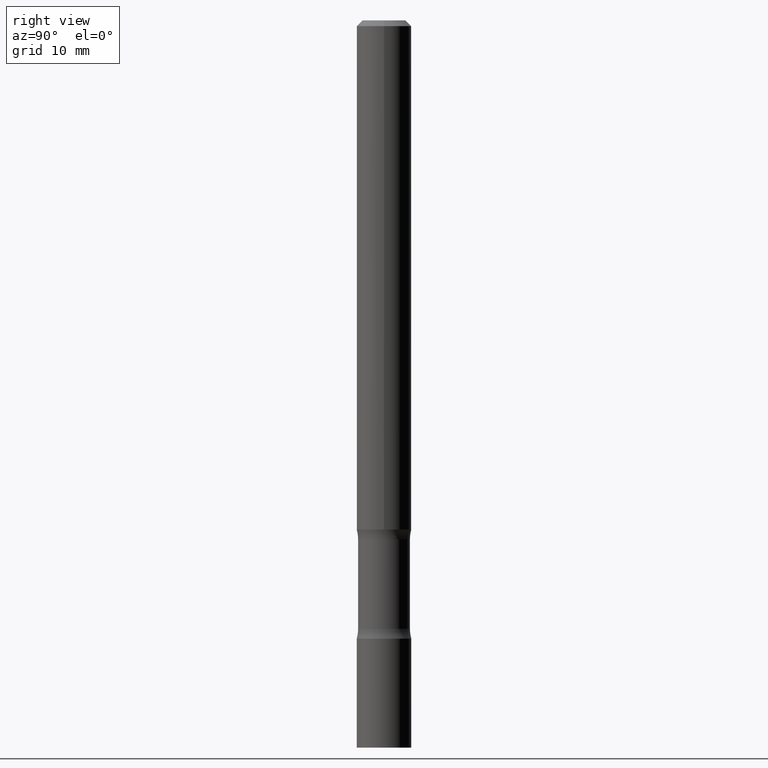
[diagram: clean part render]
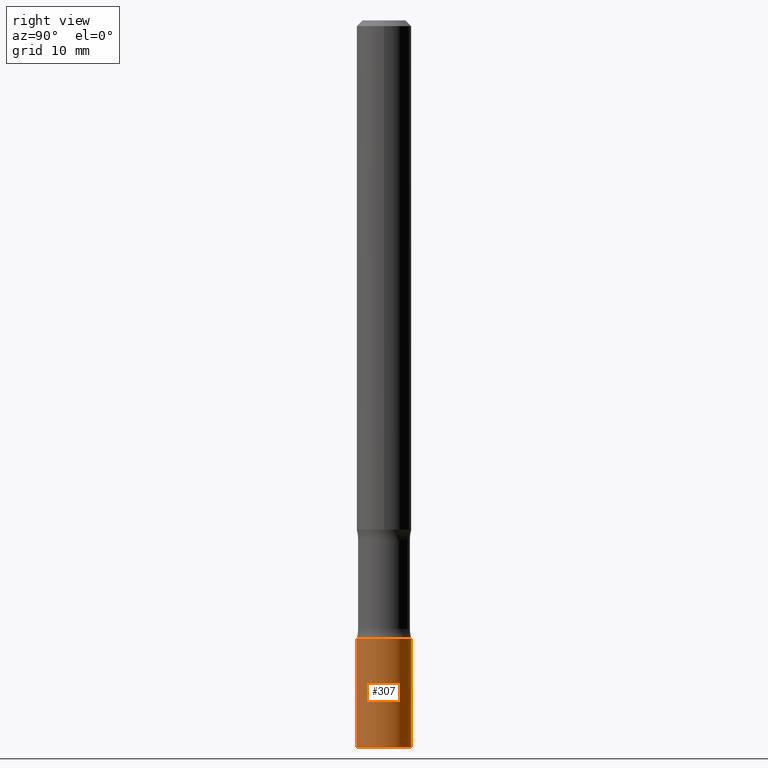
[diagram: same view with one face highlighted and labeled with its STEP entity id]
A machine part, right view. The second image highlights one B-rep face of the part: STEP entity #307.
In plain terms, the highlighted cylindrical surface (edge-blend (fillet) strip) has radius 2.3813 mm, axis along (-0, 0, 1).
Its self-contained STEP definition (entity closure, byte-faithful):
#16 = VERTEX_POINT ( 'NONE', #110 ) ;
#37 = EDGE_LOOP ( 'NONE', ( #223, #332, #491, #379 ) ) ;
#59 = CARTESIAN_POINT ( 'NONE',  ( 0.000000000000000000, 0.000000000000000000, 0.000000000000000000 ) ) ;
#65 = AXIS2_PLACEMENT_3D ( 'NONE', #328, #73, #194 ) ;
#67 = DIRECTION ( 'NONE',  ( -6.982962677686265922E-15, -1.000000000000000000, 3.491672451045937805E-15 ) ) ;
#73 = DIRECTION ( 'NONE',  ( -2.445335353247201709E-29, 3.491672451045937805E-15, 1.000000000000000000 ) ) ;
#95 = CARTESIAN_POINT ( 'NONE',  ( 6.661338147750938256E-16, 0.09375000000000001388, -3.273442922855567185E-16 ) ) ;
#97 = CYLINDRICAL_SURFACE ( 'NONE', #134, 0.09375000000000001388 ) ;
#110 = CARTESIAN_POINT ( 'NONE',  ( -6.546527510330356365E-16, -0.09375000000000743849, -2.125000000000000000 ) ) ;
#113 = CARTESIAN_POINT ( 'NONE',  ( 6.113338383118004413E-29, -8.729181127614846091E-15, -2.500000000000000000 ) ) ;
#134 = AXIS2_PLACEMENT_3D ( 'NONE', #59, #335, #67 ) ;
#148 = EDGE_CURVE ( 'NONE', #449, #236, #440, .T. ) ;
#154 = LINE ( 'NONE', #338, #200 ) ;
#174 = EDGE_CURVE ( 'NONE', #189, #16, #154, .T. ) ;
#189 = VERTEX_POINT ( 'NONE', #298 ) ;
#194 = DIRECTION ( 'NONE',  ( -6.982962677686265922E-15, -1.000000000000000000, 2.913971193241880372E-15 ) ) ;
#200 = VECTOR ( 'NONE', #416, 39.37007874015748143 ) ;
#206 = EDGE_CURVE ( 'NONE', #189, #449, #323, .T. ) ;
#223 = ORIENTED_EDGE ( 'NONE', *, *, #206, .T. ) ;
#228 = DIRECTION ( 'NONE',  ( -2.445335353247201709E-29, 3.491672451045937805E-15, 1.000000000000000000 ) ) ;
#236 = VERTEX_POINT ( 'NONE', #443 ) ;
#241 = EDGE_CURVE ( 'NONE', #16, #236, #431, .T. ) ;
#248 = VECTOR ( 'NONE', #376, 39.37007874015748143 ) ;
#298 = CARTESIAN_POINT ( 'NONE',  ( -6.546527510330263674E-16, -0.09375000000000872913, -2.499999999999999556 ) ) ;
#307 = ADVANCED_FACE ( 'NONE', ( #408 ), #97, .T. ) ;
#323 = CIRCLE ( 'NONE', #384, 0.09375000000000001388 ) ;
#328 = CARTESIAN_POINT ( 'NONE',  ( 5.196337625650303527E-29, -7.419803958472619019E-15, -2.125000000000000000 ) ) ;
#332 = ORIENTED_EDGE ( 'NONE', *, *, #148, .T. ) ;
#335 = DIRECTION ( 'NONE',  ( -2.445335353247201709E-29, 3.491672451045937805E-15, 1.000000000000000000 ) ) ;
#338 = CARTESIAN_POINT ( 'NONE',  ( -6.546527510330875041E-16, -0.09375000000000001388, 3.273442922855567185E-16 ) ) ;
#376 = DIRECTION ( 'NONE',  ( -2.445335353247201709E-29, 3.491672451045938200E-15, 1.000000000000000000 ) ) ;
#379 = ORIENTED_EDGE ( 'NONE', *, *, #174, .F. ) ;
#384 = AXIS2_PLACEMENT_3D ( 'NONE', #113, #228, #481 ) ;
#408 = FACE_OUTER_BOUND ( 'NONE', #37, .T. ) ;
#416 = DIRECTION ( 'NONE',  ( -2.445335353247201709E-29, 3.491672451045938200E-15, 1.000000000000000000 ) ) ;
#429 = CARTESIAN_POINT ( 'NONE',  ( 6.661338147751504264E-16, 0.09374999999999128475, -2.500000000000000444 ) ) ;
#431 = CIRCLE ( 'NONE', #65, 0.09375000000000001388 ) ;
#440 = LINE ( 'NONE', #95, #248 ) ;
#443 = CARTESIAN_POINT ( 'NONE',  ( 6.661338147751549624E-16, 0.09374999999999257538, -2.125000000000000444 ) ) ;
#449 = VERTEX_POINT ( 'NONE', #429 ) ;
#481 = DIRECTION ( 'NONE',  ( -6.982962677686265922E-15, -1.000000000000000000, 5.827942386483760744E-15 ) ) ;
#491 = ORIENTED_EDGE ( 'NONE', *, *, #241, .F. ) ;